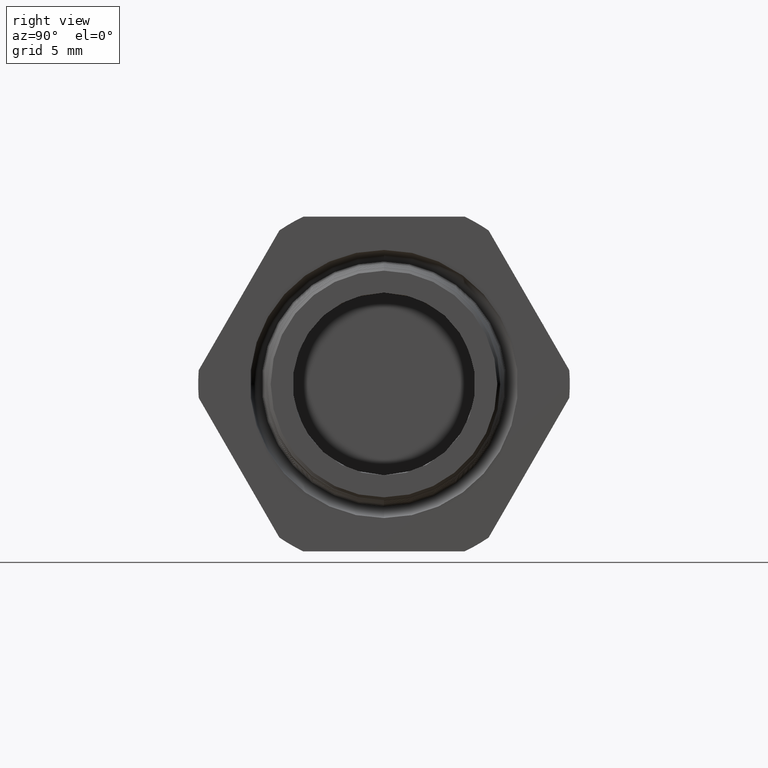
[diagram: clean part render]
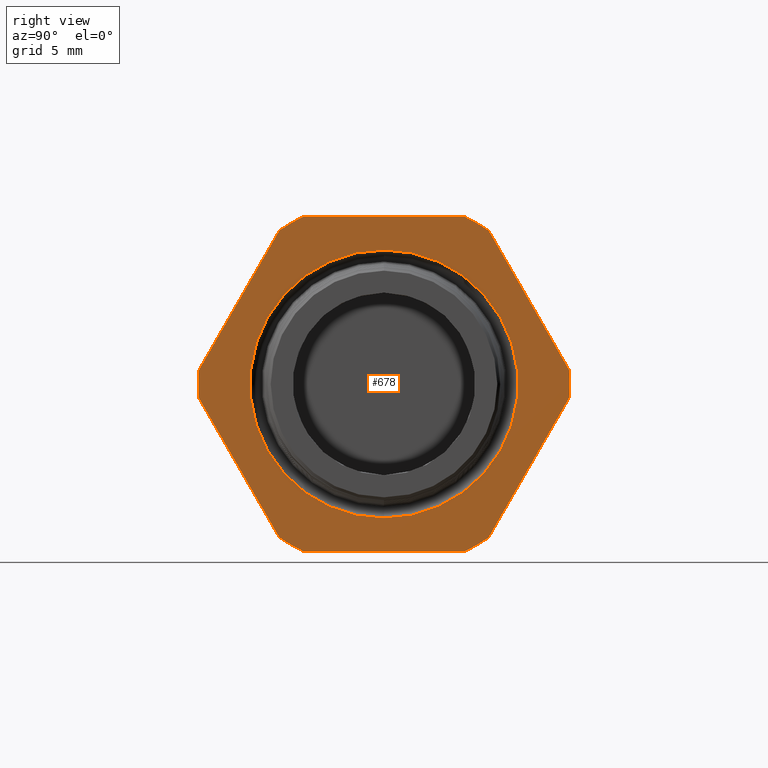
[diagram: same view with one face highlighted and labeled with its STEP entity id]
A machine part, right view. The second image highlights one B-rep face of the part: STEP entity #678.
In plain terms, the highlighted planar face has unit normal (1, 0, 0).
Its self-contained STEP definition (entity closure, byte-faithful):
#678 = ADVANCED_FACE ( 'NONE', ( #3262, #3261 ), #3260, .T. ) ;
#679 = EDGE_LOOP ( 'NONE', ( #737, #739 ) ) ;
#711 = ORIENTED_EDGE ( 'NONE', *, *, #712, .T. ) ;
#712 = EDGE_CURVE ( 'NONE', #736, #713, #3352, .T. ) ;
#713 = VERTEX_POINT ( 'NONE', #3347 ) ;
#714 = ORIENTED_EDGE ( 'NONE', *, *, #715, .T. ) ;
#715 = EDGE_CURVE ( 'NONE', #713, #716, #3346, .T. ) ;
#716 = VERTEX_POINT ( 'NONE', #3342 ) ;
#717 = ORIENTED_EDGE ( 'NONE', *, *, #718, .T. ) ;
#718 = EDGE_CURVE ( 'NONE', #716, #743, #3404, .T. ) ;
#722 = ORIENTED_EDGE ( 'NONE', *, *, #723, .T. ) ;
#723 = EDGE_CURVE ( 'NONE', #750, #751, #3393, .T. ) ;
#724 = ORIENTED_EDGE ( 'NONE', *, *, #725, .T. ) ;
#725 = EDGE_CURVE ( 'NONE', #751, #726, #3389, .T. ) ;
#726 = VERTEX_POINT ( 'NONE', #3385 ) ;
#727 = ORIENTED_EDGE ( 'NONE', *, *, #728, .T. ) ;
#728 = EDGE_CURVE ( 'NONE', #726, #729, #3384, .T. ) ;
#729 = VERTEX_POINT ( 'NONE', #3379 ) ;
#730 = ORIENTED_EDGE ( 'NONE', *, *, #731, .T. ) ;
#731 = EDGE_CURVE ( 'NONE', #729, #732, #3378, .T. ) ;
#732 = VERTEX_POINT ( 'NONE', #3374 ) ;
#733 = ORIENTED_EDGE ( 'NONE', *, *, #734, .T. ) ;
#734 = EDGE_CURVE ( 'NONE', #732, #735, #3435, .T. ) ;
#735 = VERTEX_POINT ( 'NONE', #3430 ) ;
#736 = VERTEX_POINT ( 'NONE', #3429 ) ;
#737 = ORIENTED_EDGE ( 'NONE', *, *, #738, .F. ) ;
#738 = EDGE_CURVE ( 'NONE', #1455, #1453, #3428, .T. ) ;
#739 = ORIENTED_EDGE ( 'NONE', *, *, #1438, .F. ) ;
#740 = EDGE_LOOP ( 'NONE', ( #741, #745, #748, #722, #724, #727, #730, #733, #794, #711, #714, #717 ) ) ;
#741 = ORIENTED_EDGE ( 'NONE', *, *, #742, .T. ) ;
#742 = EDGE_CURVE ( 'NONE', #743, #744, #3423, .T. ) ;
#743 = VERTEX_POINT ( 'NONE', #3419 ) ;
#744 = VERTEX_POINT ( 'NONE', #3418 ) ;
#745 = ORIENTED_EDGE ( 'NONE', *, *, #746, .T. ) ;
#746 = EDGE_CURVE ( 'NONE', #744, #747, #3417, .T. ) ;
#747 = VERTEX_POINT ( 'NONE', #3412 ) ;
#748 = ORIENTED_EDGE ( 'NONE', *, *, #749, .T. ) ;
#749 = EDGE_CURVE ( 'NONE', #747, #750, #3411, .T. ) ;
#750 = VERTEX_POINT ( 'NONE', #3406 ) ;
#751 = VERTEX_POINT ( 'NONE', #3407 ) ;
#794 = ORIENTED_EDGE ( 'NONE', *, *, #795, .T. ) ;
#795 = EDGE_CURVE ( 'NONE', #735, #736, #3509, .T. ) ;
#1438 = EDGE_CURVE ( 'NONE', #1453, #1455, #4410, .T. ) ;
#1453 = VERTEX_POINT ( 'NONE', #4431 ) ;
#1455 = VERTEX_POINT ( 'NONE', #4430 ) ;
#3256 = DIRECTION ( 'NONE',  ( 0.0000000000000000000, 0.0000000000000000000, -1.000000000000000000 ) ) ;
#3257 = DIRECTION ( 'NONE',  ( 1.000000000000000000, 0.0000000000000000000, 0.0000000000000000000 ) ) ;
#3258 = CARTESIAN_POINT ( 'NONE',  ( -0.3100000000000000000, 1.060000000000000100, 0.0000000000000000000 ) ) ;
#3259 = AXIS2_PLACEMENT_3D ( 'NONE', #3258, #3257, #3256 ) ;
#3260 = PLANE ( 'NONE',  #3259 ) ;
#3261 = FACE_OUTER_BOUND ( 'NONE', #740, .T. ) ;
#3262 = FACE_BOUND ( 'NONE', #679, .T. ) ;
#3342 = CARTESIAN_POINT ( 'NONE',  ( -0.3100000000000000000, 0.2553368167734529900, -0.5300000000000001400 ) ) ;
#3343 = DIRECTION ( 'NONE',  ( 0.0000000000000000000, 1.000000000000000000, 0.0000000000000000000 ) ) ;
#3344 = VECTOR ( 'NONE', #3343, 39.37007874015748100 ) ;
#3345 = CARTESIAN_POINT ( 'NONE',  ( -0.3100000000000000000, 1.060000000000000100, -0.5300000000000001400 ) ) ;
#3346 = LINE ( 'NONE', #3345, #3344 ) ;
#3347 = CARTESIAN_POINT ( 'NONE',  ( -0.3100000000000000000, -0.2553368167734529900, -0.5300000000000001400 ) ) ;
#3348 = DIRECTION ( 'NONE',  ( 0.0000000000000000000, 0.0000000000000000000, -1.000000000000000000 ) ) ;
#3349 = DIRECTION ( 'NONE',  ( 1.000000000000000000, 0.0000000000000000000, 0.0000000000000000000 ) ) ;
#3350 = CARTESIAN_POINT ( 'NONE',  ( -0.3100000000000000000, 0.0000000000000000000, 0.0000000000000000000 ) ) ;
#3351 = AXIS2_PLACEMENT_3D ( 'NONE', #3350, #3349, #3348 ) ;
#3352 = CIRCLE ( 'NONE', #3351, 0.5883000000000000500 ) ;
#3374 = CARTESIAN_POINT ( 'NONE',  ( -0.3100000000000000000, -0.5866618723924791300, 0.04387183015273703200 ) ) ;
#3375 = DIRECTION ( 'NONE',  ( 0.0000000000000000000, -0.4999999999999998300, -0.8660254037844388200 ) ) ;
#3376 = VECTOR ( 'NONE', #3375, 39.37007874015748100 ) ;
#3377 = CARTESIAN_POINT ( 'NONE',  ( -0.3100000000000000000, -0.1939934640057525700, 0.7239934640057522600 ) ) ;
#3378 = LINE ( 'NONE', #3377, #3376 ) ;
#3379 = CARTESIAN_POINT ( 'NONE',  ( -0.3100000000000000000, -0.3313250556190262000, 0.4861281698472627600 ) ) ;
#3380 = DIRECTION ( 'NONE',  ( 0.0000000000000000000, 0.0000000000000000000, -1.000000000000000000 ) ) ;
#3381 = DIRECTION ( 'NONE',  ( 1.000000000000000000, 0.0000000000000000000, 0.0000000000000000000 ) ) ;
#3382 = CARTESIAN_POINT ( 'NONE',  ( -0.3100000000000000000, 0.0000000000000000000, 0.0000000000000000000 ) ) ;
#3383 = AXIS2_PLACEMENT_3D ( 'NONE', #3382, #3381, #3380 ) ;
#3384 = CIRCLE ( 'NONE', #3383, 0.5882999999999999300 ) ;
#3385 = CARTESIAN_POINT ( 'NONE',  ( -0.3100000000000000000, -0.2553368167734533200, 0.5299999999999999200 ) ) ;
#3386 = DIRECTION ( 'NONE',  ( 0.0000000000000000000, -1.000000000000000000, 0.0000000000000000000 ) ) ;
#3387 = VECTOR ( 'NONE', #3386, 39.37007874015748100 ) ;
#3388 = CARTESIAN_POINT ( 'NONE',  ( -0.3100000000000000000, 1.060000000000000100, 0.5300000000000001400 ) ) ;
#3389 = LINE ( 'NONE', #3388, #3387 ) ;
#3390 = DIRECTION ( 'NONE',  ( 0.0000000000000000000, 0.0000000000000000000, -1.000000000000000000 ) ) ;
#3391 = DIRECTION ( 'NONE',  ( 1.000000000000000000, 0.0000000000000000000, 0.0000000000000000000 ) ) ;
#3392 = AXIS2_PLACEMENT_3D ( 'NONE', #3398, #3391, #3390 ) ;
#3393 = CIRCLE ( 'NONE', #3392, 0.5882999999999999300 ) ;
#3398 = CARTESIAN_POINT ( 'NONE',  ( -0.3100000000000000000, 0.0000000000000000000, 0.0000000000000000000 ) ) ;
#3400 = DIRECTION ( 'NONE',  ( 0.0000000000000000000, 0.0000000000000000000, -1.000000000000000000 ) ) ;
#3401 = DIRECTION ( 'NONE',  ( 1.000000000000000000, 0.0000000000000000000, 0.0000000000000000000 ) ) ;
#3402 = CARTESIAN_POINT ( 'NONE',  ( -0.3100000000000000000, 0.0000000000000000000, 0.0000000000000000000 ) ) ;
#3403 = AXIS2_PLACEMENT_3D ( 'NONE', #3402, #3401, #3400 ) ;
#3404 = CIRCLE ( 'NONE', #3403, 0.5882999999999999300 ) ;
#3406 = CARTESIAN_POINT ( 'NONE',  ( -0.3100000000000000000, 0.3313250556190263700, 0.4861281698472626500 ) ) ;
#3407 = CARTESIAN_POINT ( 'NONE',  ( -0.3100000000000000000, 0.2553368167734530500, 0.5300000000000001400 ) ) ;
#3408 = DIRECTION ( 'NONE',  ( 0.0000000000000000000, -0.4999999999999998300, 0.8660254037844388200 ) ) ;
#3409 = VECTOR ( 'NONE', #3408, 39.37007874015748100 ) ;
#3410 = CARTESIAN_POINT ( 'NONE',  ( -0.3100000000000000000, 0.7239934640057524900, -0.1939934640057523800 ) ) ;
#3411 = LINE ( 'NONE', #3410, #3409 ) ;
#3412 = CARTESIAN_POINT ( 'NONE',  ( -0.3100000000000000000, 0.5866618723924789100, 0.04387183015273755900 ) ) ;
#3413 = DIRECTION ( 'NONE',  ( 0.0000000000000000000, 0.0000000000000000000, -1.000000000000000000 ) ) ;
#3414 = DIRECTION ( 'NONE',  ( 1.000000000000000000, 0.0000000000000000000, 0.0000000000000000000 ) ) ;
#3415 = CARTESIAN_POINT ( 'NONE',  ( -0.3100000000000000000, 0.0000000000000000000, 0.0000000000000000000 ) ) ;
#3416 = AXIS2_PLACEMENT_3D ( 'NONE', #3415, #3414, #3413 ) ;
#3417 = CIRCLE ( 'NONE', #3416, 0.5882999999999999300 ) ;
#3418 = CARTESIAN_POINT ( 'NONE',  ( -0.3100000000000000000, 0.5866618723924790200, -0.04387183015273746900 ) ) ;
#3419 = CARTESIAN_POINT ( 'NONE',  ( -0.3100000000000000000, 0.3313250556190264200, -0.4861281698472626500 ) ) ;
#3420 = DIRECTION ( 'NONE',  ( 0.0000000000000000000, 0.4999999999999998300, 0.8660254037844388200 ) ) ;
#3421 = VECTOR ( 'NONE', #3420, 39.37007874015748100 ) ;
#3422 = CARTESIAN_POINT ( 'NONE',  ( -0.3100000000000000000, 0.7239934640057524900, 0.1939934640057523200 ) ) ;
#3423 = LINE ( 'NONE', #3422, #3421 ) ;
#3424 = DIRECTION ( 'NONE',  ( 0.0000000000000000000, 0.0000000000000000000, -1.000000000000000000 ) ) ;
#3425 = DIRECTION ( 'NONE',  ( 1.000000000000000000, 0.0000000000000000000, 0.0000000000000000000 ) ) ;
#3426 = CARTESIAN_POINT ( 'NONE',  ( -0.3100000000000000000, 0.0000000000000000000, 0.0000000000000000000 ) ) ;
#3427 = AXIS2_PLACEMENT_3D ( 'NONE', #3426, #3425, #3424 ) ;
#3428 = CIRCLE ( 'NONE', #3427, 0.4243759711786115300 ) ;
#3429 = CARTESIAN_POINT ( 'NONE',  ( -0.3100000000000000000, -0.3313250556190258700, -0.4861281698472630400 ) ) ;
#3430 = CARTESIAN_POINT ( 'NONE',  ( -0.3100000000000000000, -0.5866618723924791300, -0.04387183015273715000 ) ) ;
#3431 = DIRECTION ( 'NONE',  ( 0.0000000000000000000, 0.0000000000000000000, -1.000000000000000000 ) ) ;
#3432 = DIRECTION ( 'NONE',  ( 1.000000000000000000, 0.0000000000000000000, 0.0000000000000000000 ) ) ;
#3433 = CARTESIAN_POINT ( 'NONE',  ( -0.3100000000000000000, 0.0000000000000000000, 0.0000000000000000000 ) ) ;
#3434 = AXIS2_PLACEMENT_3D ( 'NONE', #3433, #3432, #3431 ) ;
#3435 = CIRCLE ( 'NONE', #3434, 0.5883000000000000500 ) ;
#3506 = DIRECTION ( 'NONE',  ( 0.0000000000000000000, 0.5000000000000002200, -0.8660254037844386000 ) ) ;
#3507 = VECTOR ( 'NONE', #3506, 39.37007874015747400 ) ;
#3508 = CARTESIAN_POINT ( 'NONE',  ( -0.3100000000000000000, -0.1939934640057522900, -0.7239934640057527100 ) ) ;
#3509 = LINE ( 'NONE', #3508, #3507 ) ;
#4407 = DIRECTION ( 'NONE',  ( 0.0000000000000000000, 0.0000000000000000000, -1.000000000000000000 ) ) ;
#4408 = DIRECTION ( 'NONE',  ( 1.000000000000000000, 0.0000000000000000000, 0.0000000000000000000 ) ) ;
#4409 = AXIS2_PLACEMENT_3D ( 'NONE', #4416, #4408, #4407 ) ;
#4410 = CIRCLE ( 'NONE', #4409, 0.4243759711786115300 ) ;
#4416 = CARTESIAN_POINT ( 'NONE',  ( -0.3100000000000000000, 0.0000000000000000000, 0.0000000000000000000 ) ) ;
#4430 = CARTESIAN_POINT ( 'NONE',  ( -0.3100000000000000000, 0.0000000000000000000, -0.4243759711786115300 ) ) ;
#4431 = CARTESIAN_POINT ( 'NONE',  ( -0.3100000000000000000, 5.197106747389359900E-017, 0.4243759711786115300 ) ) ;